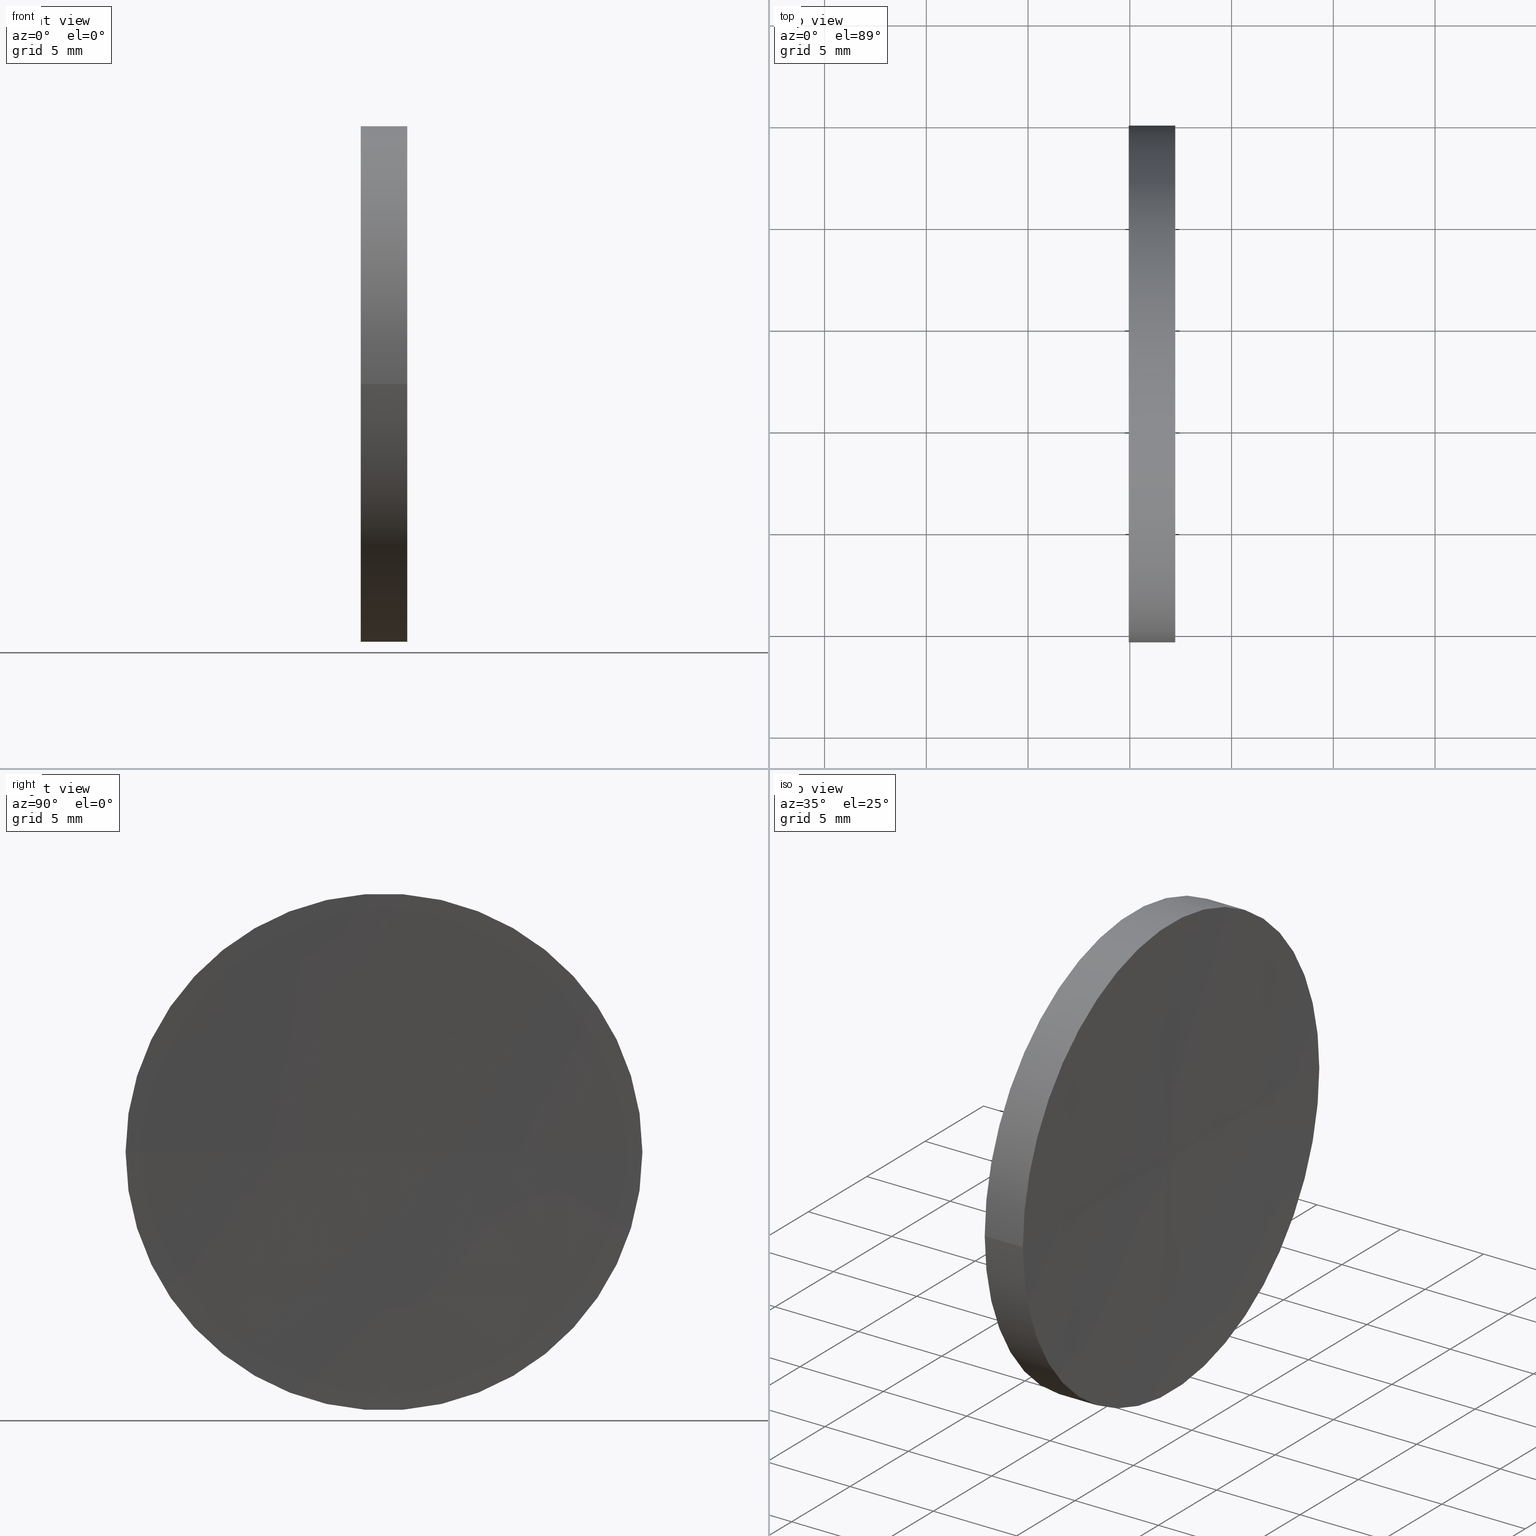
[diagram: canonical four-view strip — front | top / right | iso, engineering-drawing reading convention]
A machine part, canonical four-view strip (front | top / right | iso — engineering-drawing reading convention). The complete STEP part file that produces these views, byte-faithful:
ISO-10303-21;
HEADER;
FILE_DESCRIPTION (( 'STEP AP214' ),
    '1' );
FILE_NAME ('130082.STEP',
    '2019-07-03T06:14:17',
    ( '' ),
    ( '' ),
    'SwSTEP 2.0',
    'SolidWorks 2016',
    '' );
FILE_SCHEMA (( 'AUTOMOTIVE_DESIGN' ));
ENDSEC;

DATA;
#1 = ADVANCED_BREP_SHAPE_REPRESENTATION ( '130082', ( #92, #154 ), #137 ) ;
#2 = ORIENTED_EDGE ( 'NONE', *, *, #124, .T. ) ;
#3 = DIRECTION ( 'NONE',  ( -3.953785700232038400E-016, 1.000000000000000000, 0.0000000000000000000 ) ) ;
#4 = DIRECTION ( 'NONE',  ( 1.000000000000000000, 0.0000000000000000000, 0.0000000000000000000 ) ) ;
#5 = FACE_OUTER_BOUND ( 'NONE', #9, .T. ) ;
#6 = DIRECTION ( 'NONE',  ( -1.000000000000000000, -4.877362175853829600E-016, -0.0000000000000000000 ) ) ;
#7 = AXIS2_PLACEMENT_3D ( 'NONE', #119, #51, #34 ) ;
#8 = ORIENTED_EDGE ( 'NONE', *, *, #129, .F. ) ;
#9 = EDGE_LOOP ( 'NONE', ( #58, #71, #144 ) ) ;
#10 = DIRECTION ( 'NONE',  ( -5.973045976941762700E-032, 1.224646799147353200E-016, -1.000000000000000000 ) ) ;
#11 =( LENGTH_UNIT ( ) NAMED_UNIT ( * ) SI_UNIT ( .MILLI., .METRE. ) );
#12 = DIRECTION ( 'NONE',  ( 1.000000000000000000, 0.0000000000000000000, 0.0000000000000000000 ) ) ;
#13 = CYLINDRICAL_SURFACE ( 'NONE', #165, 12.70000000000000300 ) ;
#14 = EDGE_CURVE ( 'NONE', #94, #39, #139, .T. ) ;
#15 = CLOSED_SHELL ( 'NONE', ( #123, #174, #110, #22, #86, #53 ) ) ;
#16 = AXIS2_PLACEMENT_3D ( 'NONE', #189, #147, #74 ) ;
#17 = VERTEX_POINT ( 'NONE', #68 ) ;
#18 = DIRECTION ( 'NONE',  ( 0.0000000000000000000, -1.000000000000000000, 0.0000000000000000000 ) ) ;
#19 = DIRECTION ( 'NONE',  ( 0.0000000000000000000, -1.000000000000000000, 0.0000000000000000000 ) ) ;
#20 = PRODUCT_DEFINITION ( 'δ֪', '', #168, #35 ) ;
#21 = ORIENTED_EDGE ( 'NONE', *, *, #134, .F. ) ;
#22 = ADVANCED_FACE ( 'NONE', ( #125 ), #64, .F. ) ;
#23 = AXIS2_PLACEMENT_3D ( 'NONE', #84, #6, #18 ) ;
#24 = CIRCLE ( 'NONE', #57, 12.70000000000007900 ) ;
#25 = CARTESIAN_POINT ( 'NONE',  ( 97.23406135539724500, 64.87808229838934400, 0.0000000000000000000 ) ) ;
#26 = DIRECTION ( 'NONE',  ( -1.000000000000000000, -4.877362175853829600E-016, -0.0000000000000000000 ) ) ;
#27 = ORIENTED_EDGE ( 'NONE', *, *, #182, .F. ) ;
#28 =( NAMED_UNIT ( * ) SI_UNIT ( $, .STERADIAN. ) SOLID_ANGLE_UNIT ( ) );
#29 = AXIS2_PLACEMENT_3D ( 'NONE', #132, #111, #177 ) ;
#30 = CYLINDRICAL_SURFACE ( 'NONE', #29, 12.70000000000000300 ) ;
#31 = PRODUCT_DEFINITION_SHAPE ( 'NONE', 'NONE',  #20 ) ;
#32 = CARTESIAN_POINT ( 'NONE',  ( 658.6904443452072000, 52.17808229838973200, 0.0000000000000000000 ) ) ;
#33 = FACE_OUTER_BOUND ( 'NONE', #166, .T. ) ;
#34 = DIRECTION ( 'NONE',  ( -4.942232125290049200E-016, 1.000000000000000000, 0.0000000000000000000 ) ) ;
#35 = PRODUCT_DEFINITION_CONTEXT ( 'detailed design', #102, 'design' ) ;
#36 = CARTESIAN_POINT ( 'NONE',  ( 89.85865645361708700, 39.47808229838990700, 0.0000000000000000000 ) ) ;
#37 = SHAPE_DEFINITION_REPRESENTATION ( #31, #1 ) ;
#38 = DIRECTION ( 'NONE',  ( 0.0000000000000000000, -0.0000000000000000000, 1.000000000000000000 ) ) ;
#39 = VERTEX_POINT ( 'NONE', #128 ) ;
#40 = VERTEX_POINT ( 'NONE', #188 ) ;
#41 = FILL_AREA_STYLE_COLOUR ( '', #176 ) ;
#42 = SURFACE_STYLE_USAGE ( .BOTH. , #115 ) ;
#43 = CARTESIAN_POINT ( 'NONE',  ( 97.23406135539724500, 52.17808229838991700, 0.0000000000000000000 ) ) ;
#44 = DIRECTION ( 'NONE',  ( 0.0000000000000000000, 0.0000000000000000000, 1.000000000000000000 ) ) ;
#45 = ORIENTED_EDGE ( 'NONE', *, *, #14, .T. ) ;
#46 = DIRECTION ( 'NONE',  ( 0.0000000000000000000, 0.0000000000000000000, -1.000000000000000000 ) ) ;
#47 = LINE ( 'NONE', #36, #106 ) ;
#48 = AXIS2_PLACEMENT_3D ( 'NONE', #127, #38, #12 ) ;
#49 = SURFACE_STYLE_USAGE ( .BOTH. , #140 ) ;
#50 = ORIENTED_EDGE ( 'NONE', *, *, #129, .T. ) ;
#51 = DIRECTION ( 'NONE',  ( 0.0000000000000000000, 0.0000000000000000000, -1.000000000000000000 ) ) ;
#52 = ORIENTED_EDGE ( 'NONE', *, *, #66, .T. ) ;
#53 = ADVANCED_FACE ( 'NONE', ( #155 ), #13, .T. ) ;
#54 = EDGE_CURVE ( 'NONE', #40, #184, #99, .T. ) ;
#55 = CIRCLE ( 'NONE', #48, 561.6000000000000200 ) ;
#56 = AXIS2_PLACEMENT_3D ( 'NONE', #192, #179, #133 ) ;
#57 = AXIS2_PLACEMENT_3D ( 'NONE', #183, #152, #78 ) ;
#58 = ORIENTED_EDGE ( 'NONE', *, *, #88, .F. ) ;
#59 =( LENGTH_UNIT ( ) NAMED_UNIT ( * ) SI_UNIT ( .MILLI., .METRE. ) );
#60 =( NAMED_UNIT ( * ) PLANE_ANGLE_UNIT ( ) SI_UNIT ( $, .RADIAN. ) );
#61 = PRESENTATION_STYLE_ASSIGNMENT (( #42 ) ) ;
#62 = CIRCLE ( 'NONE', #16, 12.70000000000000300 ) ;
#63 = UNCERTAINTY_MEASURE_WITH_UNIT (LENGTH_MEASURE( 1.000000000000000100E-005 ), #65, 'distance_accuracy_value', 'NONE');
#64 = SPHERICAL_SURFACE ( 'NONE', #112, 561.6000000000000200 ) ;
#65 =( LENGTH_UNIT ( ) NAMED_UNIT ( * ) SI_UNIT ( .MILLI., .METRE. ) );
#66 = EDGE_CURVE ( 'NONE', #17, #184, #55, .T. ) ;
#67 = ORIENTED_EDGE ( 'NONE', *, *, #66, .F. ) ;
#68 = CARTESIAN_POINT ( 'NONE',  ( 95.09044359151263800, 52.17808229839221900, 0.0000000000000000000 ) ) ;
#69 = EDGE_LOOP ( 'NONE', ( #67, #161, #97 ) ) ;
#70 = DIRECTION ( 'NONE',  ( -1.000000000000000000, -4.877362175853829600E-016, -0.0000000000000000000 ) ) ;
#71 = ORIENTED_EDGE ( 'NONE', *, *, #101, .T. ) ;
#72 = FACE_OUTER_BOUND ( 'NONE', #69, .T. ) ;
#73 = CARTESIAN_POINT ( 'NONE',  ( 0.0000000000000000000, 0.0000000000000000000, 0.0000000000000000000 ) ) ;
#74 = DIRECTION ( 'NONE',  ( 0.0000000000000000000, -1.000000000000000000, 0.0000000000000000000 ) ) ;
#75 = AXIS2_PLACEMENT_3D ( 'NONE', #32, #79, #4 ) ;
#76 = ORIENTED_EDGE ( 'NONE', *, *, #80, .F. ) ;
#77 = PRESENTATION_LAYER_ASSIGNMENT (  '', '', ( #173 ) ) ;
#78 = DIRECTION ( 'NONE',  ( 0.0000000000000000000, -1.000000000000000000, 0.0000000000000000000 ) ) ;
#79 = DIRECTION ( 'NONE',  ( 0.0000000000000000000, -0.0000000000000000000, 1.000000000000000000 ) ) ;
#80 = EDGE_CURVE ( 'NONE', #85, #40, #47, .T. ) ;
#81 = CIRCLE ( 'NONE', #175, 561.6000000000001400 ) ;
#82 = EDGE_LOOP ( 'NONE', ( #27, #2, #172, #8 ) ) ;
#83 = COLOUR_RGB ( '',1.000000000000000000, 1.000000000000000000, 1.000000000000000000 ) ;
#84 = CARTESIAN_POINT ( 'NONE',  ( 94.94682658132261100, 52.17808229838991000, 0.0000000000000000000 ) ) ;
#85 = VERTEX_POINT ( 'NONE', #190 ) ;
#86 = ADVANCED_FACE ( 'NONE', ( #33 ), #159, .F. ) ;
#87 =( NAMED_UNIT ( * ) SI_UNIT ( $, .STERADIAN. ) SOLID_ANGLE_UNIT ( ) );
#88 = EDGE_CURVE ( 'NONE', #85, #94, #24, .T. ) ;
#89 = PRESENTATION_STYLE_ASSIGNMENT (( #49 ) ) ;
#90 = CARTESIAN_POINT ( 'NONE',  ( -466.5095564084873600, 52.17808229839191400, 0.0000000000000000000 ) ) ;
#91 = ORIENTED_EDGE ( 'NONE', *, *, #101, .F. ) ;
#92 = MANIFOLD_SOLID_BREP ( '��ת1', #15 ) ;
#93 =( GEOMETRIC_REPRESENTATION_CONTEXT ( 3 ) GLOBAL_UNCERTAINTY_ASSIGNED_CONTEXT ( ( #158 ) ) GLOBAL_UNIT_ASSIGNED_CONTEXT ( ( #59, #135, #28 ) ) REPRESENTATION_CONTEXT ( 'NONE', 'WORKASPACE' ) );
#94 = VERTEX_POINT ( 'NONE', #25 ) ;
#95 =( NAMED_UNIT ( * ) SI_UNIT ( $, .STERADIAN. ) SOLID_ANGLE_UNIT ( ) );
#96 = CARTESIAN_POINT ( 'NONE',  ( -466.5095564084873600, 52.17808229839191400, 0.0000000000000000000 ) ) ;
#97 = ORIENTED_EDGE ( 'NONE', *, *, #54, .T. ) ;
#98 = CARTESIAN_POINT ( 'NONE',  ( 89.85865645361708700, 52.17808229838991000, 0.0000000000000000000 ) ) ;
#99 = CIRCLE ( 'NONE', #23, 12.70000000000000300 ) ;
#100 = DIRECTION ( 'NONE',  ( -1.000000000000000000, -4.877362175853829600E-016, -0.0000000000000000000 ) ) ;
#101 = EDGE_CURVE ( 'NONE', #85, #39, #81, .T. ) ;
#102 = APPLICATION_CONTEXT ( 'automotive_design' ) ;
#103 = DIRECTION ( 'NONE',  ( 0.0000000000000000000, 1.000000000000000000, 1.224646799147353200E-016 ) ) ;
#104 = CARTESIAN_POINT ( 'NONE',  ( 89.85865645361708700, 64.87808229838991300, 1.555301434917138800E-015 ) ) ;
#105 = APPLICATION_PROTOCOL_DEFINITION ( 'draft international standard', 'automotive_design', 1998, #148 ) ;
#106 = VECTOR ( 'NONE', #100, 1000.000000000000000 ) ;
#107 = DIRECTION ( 'NONE',  ( 0.0000000000000000000, 1.000000000000000000, 1.224646799147353200E-016 ) ) ;
#108 = FACE_OUTER_BOUND ( 'NONE', #143, .T. ) ;
#109 = DIRECTION ( 'NONE',  ( -4.942232125290049200E-016, 1.000000000000000000, 0.0000000000000000000 ) ) ;
#110 = ADVANCED_FACE ( 'NONE', ( #72 ), #146, .F. ) ;
#111 = DIRECTION ( 'NONE',  ( -1.000000000000000000, -4.877362175853829600E-016, -0.0000000000000000000 ) ) ;
#112 = AXIS2_PLACEMENT_3D ( 'NONE', #96, #120, #109 ) ;
#113 = ORIENTED_EDGE ( 'NONE', *, *, #88, .T. ) ;
#114 = FILL_AREA_STYLE ('',( #41 ) ) ;
#115 = SURFACE_SIDE_STYLE ('',( #142 ) ) ;
#116 = AXIS2_PLACEMENT_3D ( 'NONE', #90, #10, #103 ) ;
#117 = FILL_AREA_STYLE ('',( #169 ) ) ;
#118 = MECHANICAL_DESIGN_GEOMETRIC_PRESENTATION_REPRESENTATION (  '', ( #156 ), #186 ) ;
#119 = CARTESIAN_POINT ( 'NONE',  ( -466.5095564084873600, 52.17808229839191400, 0.0000000000000000000 ) ) ;
#120 = DIRECTION ( 'NONE',  ( 0.0000000000000000000, 0.0000000000000000000, -1.000000000000000000 ) ) ;
#121 = CARTESIAN_POINT ( 'NONE',  ( 658.6904443452072000, 52.17808229838973200, 0.0000000000000000000 ) ) ;
#122 = ORIENTED_EDGE ( 'NONE', *, *, #124, .F. ) ;
#123 = ADVANCED_FACE ( 'NONE', ( #108 ), #30, .T. ) ;
#124 = EDGE_CURVE ( 'NONE', #94, #85, #178, .T. ) ;
#125 = FACE_OUTER_BOUND ( 'NONE', #126, .T. ) ;
#126 = EDGE_LOOP ( 'NONE', ( #21, #52, #50 ) ) ;
#127 = CARTESIAN_POINT ( 'NONE',  ( -466.5095564084873600, 52.17808229839191400, 0.0000000000000000000 ) ) ;
#128 = CARTESIAN_POINT ( 'NONE',  ( 97.09044434520708900, 52.17808229838949100, 0.0000000000000000000 ) ) ;
#129 = EDGE_CURVE ( 'NONE', #184, #40, #62, .T. ) ;
#130 = DIRECTION ( 'NONE',  ( -1.000000000000000000, -4.877362175853829600E-016, -0.0000000000000000000 ) ) ;
#131 = CIRCLE ( 'NONE', #116, 561.6000000000000200 ) ;
#132 = CARTESIAN_POINT ( 'NONE',  ( 89.85865645361708700, 52.17808229838991000, 0.0000000000000000000 ) ) ;
#133 = DIRECTION ( 'NONE',  ( -3.953785700232038400E-016, 1.000000000000000000, 0.0000000000000000000 ) ) ;
#134 = EDGE_CURVE ( 'NONE', #17, #40, #131, .T. ) ;
#135 =( NAMED_UNIT ( * ) PLANE_ANGLE_UNIT ( ) SI_UNIT ( $, .RADIAN. ) );
#136 = SPHERICAL_SURFACE ( 'NONE', #56, 561.6000000000001400 ) ;
#137 =( GEOMETRIC_REPRESENTATION_CONTEXT ( 3 ) GLOBAL_UNCERTAINTY_ASSIGNED_CONTEXT ( ( #150 ) ) GLOBAL_UNIT_ASSIGNED_CONTEXT ( ( #11, #60, #87 ) ) REPRESENTATION_CONTEXT ( 'NONE', 'WORKASPACE' ) );
#138 = AXIS2_PLACEMENT_3D ( 'NONE', #167, #46, #3 ) ;
#139 = CIRCLE ( 'NONE', #75, 561.6000000000000200 ) ;
#140 = SURFACE_SIDE_STYLE ('',( #171 ) ) ;
#141 = ORIENTED_EDGE ( 'NONE', *, *, #54, .F. ) ;
#142 = SURFACE_STYLE_FILL_AREA ( #114 ) ;
#143 = EDGE_LOOP ( 'NONE', ( #113, #157, #141, #76 ) ) ;
#144 = ORIENTED_EDGE ( 'NONE', *, *, #14, .F. ) ;
#145 = CARTESIAN_POINT ( 'NONE',  ( 94.94682658132265400, 64.87808229838628900, 0.0000000000000000000 ) ) ;
#146 = SPHERICAL_SURFACE ( 'NONE', #7, 561.6000000000000200 ) ;
#147 = DIRECTION ( 'NONE',  ( -1.000000000000000000, -4.877362175853829600E-016, -0.0000000000000000000 ) ) ;
#148 = APPLICATION_CONTEXT ( 'automotive_design' ) ;
#149 = PRODUCT ( '130082', '130082', '', ( #162 ) ) ;
#150 = UNCERTAINTY_MEASURE_WITH_UNIT (LENGTH_MEASURE( 1.000000000000000100E-005 ), #11, 'distance_accuracy_value', 'NONE');
#151 = MECHANICAL_DESIGN_GEOMETRIC_PRESENTATION_REPRESENTATION (  '', ( #173 ), #93 ) ;
#152 = DIRECTION ( 'NONE',  ( -1.000000000000000000, -4.877362175853829600E-016, -0.0000000000000000000 ) ) ;
#153 =( NAMED_UNIT ( * ) PLANE_ANGLE_UNIT ( ) SI_UNIT ( $, .RADIAN. ) );
#154 = AXIS2_PLACEMENT_3D ( 'NONE', #73, #44, #160 ) ;
#155 = FACE_OUTER_BOUND ( 'NONE', #82, .T. ) ;
#156 = STYLED_ITEM ( 'NONE', ( #89 ), #92 ) ;
#157 = ORIENTED_EDGE ( 'NONE', *, *, #182, .T. ) ;
#158 = UNCERTAINTY_MEASURE_WITH_UNIT (LENGTH_MEASURE( 1.000000000000000100E-005 ), #59, 'distance_accuracy_value', 'NONE');
#159 = SPHERICAL_SURFACE ( 'NONE', #138, 561.6000000000001400 ) ;
#160 = DIRECTION ( 'NONE',  ( 1.000000000000000000, 0.0000000000000000000, 0.0000000000000000000 ) ) ;
#161 = ORIENTED_EDGE ( 'NONE', *, *, #134, .T. ) ;
#162 = PRODUCT_CONTEXT ( 'NONE', #148, 'mechanical' ) ;
#163 = LINE ( 'NONE', #104, #181 ) ;
#164 = DIRECTION ( 'NONE',  ( 0.0000000000000000000, -1.000000000000000000, 0.0000000000000000000 ) ) ;
#165 = AXIS2_PLACEMENT_3D ( 'NONE', #98, #70, #19 ) ;
#166 = EDGE_LOOP ( 'NONE', ( #91, #122, #45 ) ) ;
#167 = CARTESIAN_POINT ( 'NONE',  ( 658.6904443452072000, 52.17808229838973200, 0.0000000000000000000 ) ) ;
#168 = PRODUCT_DEFINITION_FORMATION_WITH_SPECIFIED_SOURCE ( '�κ�', '', #149, .NOT_KNOWN. ) ;
#169 = FILL_AREA_STYLE_COLOUR ( '', #83 ) ;
#170 = DIRECTION ( 'NONE',  ( -5.973045976941762700E-032, 1.224646799147353200E-016, -1.000000000000000000 ) ) ;
#171 = SURFACE_STYLE_FILL_AREA ( #117 ) ;
#172 = ORIENTED_EDGE ( 'NONE', *, *, #80, .T. ) ;
#173 = STYLED_ITEM ( 'NONE', ( #61 ), #1 ) ;
#174 = ADVANCED_FACE ( 'NONE', ( #5 ), #136, .F. ) ;
#175 = AXIS2_PLACEMENT_3D ( 'NONE', #121, #170, #107 ) ;
#176 = COLOUR_RGB ( '',1.000000000000000000, 1.000000000000000000, 1.000000000000000000 ) ;
#177 = DIRECTION ( 'NONE',  ( 0.0000000000000000000, -1.000000000000000000, 0.0000000000000000000 ) ) ;
#178 = CIRCLE ( 'NONE', #185, 12.70000000000007900 ) ;
#179 = DIRECTION ( 'NONE',  ( 0.0000000000000000000, 0.0000000000000000000, -1.000000000000000000 ) ) ;
#180 = PRESENTATION_LAYER_ASSIGNMENT (  '', '', ( #156 ) ) ;
#181 = VECTOR ( 'NONE', #130, 1000.000000000000000 ) ;
#182 = EDGE_CURVE ( 'NONE', #94, #184, #163, .T. ) ;
#183 = CARTESIAN_POINT ( 'NONE',  ( 97.23406135539724500, 52.17808229838991700, 0.0000000000000000000 ) ) ;
#184 = VERTEX_POINT ( 'NONE', #145 ) ;
#185 = AXIS2_PLACEMENT_3D ( 'NONE', #43, #26, #164 ) ;
#186 =( GEOMETRIC_REPRESENTATION_CONTEXT ( 3 ) GLOBAL_UNCERTAINTY_ASSIGNED_CONTEXT ( ( #63 ) ) GLOBAL_UNIT_ASSIGNED_CONTEXT ( ( #65, #153, #95 ) ) REPRESENTATION_CONTEXT ( 'NONE', 'WORKASPACE' ) );
#187 = PRODUCT_RELATED_PRODUCT_CATEGORY ( 'part', '', ( #149 ) ) ;
#188 = CARTESIAN_POINT ( 'NONE',  ( 94.94682658132265400, 39.47808229839580500, -1.555301434916695900E-015 ) ) ;
#189 = CARTESIAN_POINT ( 'NONE',  ( 94.94682658132261100, 52.17808229838991000, 0.0000000000000000000 ) ) ;
#190 = CARTESIAN_POINT ( 'NONE',  ( 97.23406135539724500, 39.47808229839003500, -1.555301434917068800E-015 ) ) ;
#191 = APPLICATION_PROTOCOL_DEFINITION ( 'draft international standard', 'automotive_design', 1998, #102 ) ;
#192 = CARTESIAN_POINT ( 'NONE',  ( 658.6904443452072000, 52.17808229838973200, 0.0000000000000000000 ) ) ;
ENDSEC;
END-ISO-10303-21;
